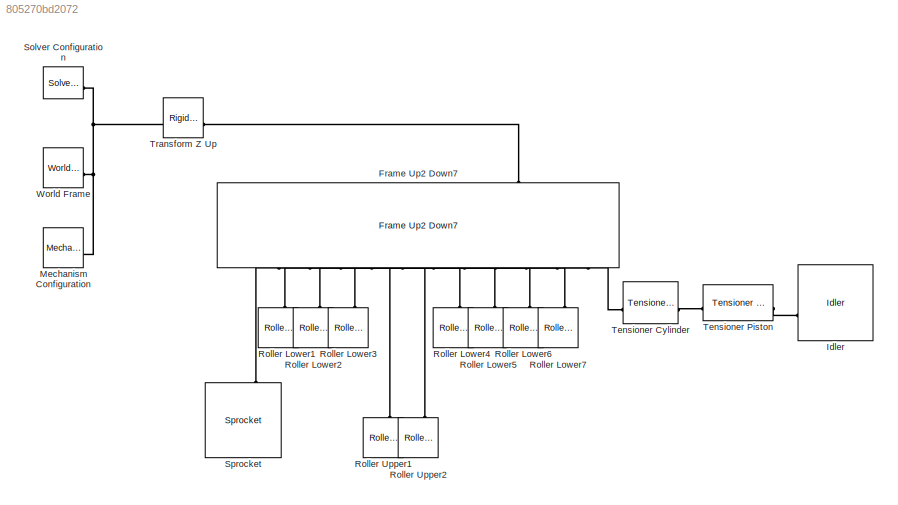
MODEL slx_805270bd2072
KIND model
CONFIG AbsTol = 1e-3
CONFIG EnableMultiTasking = on
CONFIG SolverName = VariableStepAuto
BLOCK [Reference] Frame Up2 Down7  REF=sm_trackV_lib_frame_i1u2l7/Frame
Up2 Down7
  NameLocation = left
  SourceBlock = sm_trackV_lib_frame_i1u2l7/Frame\nUp2 Down7
  SourceType = Frame Locations, Sprocket, Rollers (9), Idler (1)
BLOCK [Reference] Idler  REF=sm_trackV_lib_chain_underc_elem/Idler
  SourceBlock = sm_trackV_lib_chain_underc_elem/Idler
  SourceType = Idler
BLOCK [Reference] Mechanism Configuration  REF=sm_lib/Utilities/Mechanism
Configuration
  SourceBlock = sm_lib/Utilities/Mechanism\nConfiguration
  SourceType = Mechanism\nConfiguration
BLOCK [Reference] Roller Lower1  REF=sm_trackV_lib_chain_underc_elem/Roller Lower
  SourceBlock = sm_trackV_lib_chain_underc_elem/Roller Lower
  SourceType = Lower Roller
BLOCK [Reference] Roller Lower2  REF=sm_trackV_lib_chain_underc_elem/Roller Lower
  SourceBlock = sm_trackV_lib_chain_underc_elem/Roller Lower
  SourceType = Lower Roller
BLOCK [Reference] Roller Lower3  REF=sm_trackV_lib_chain_underc_elem/Roller Lower
  SourceBlock = sm_trackV_lib_chain_underc_elem/Roller Lower
  SourceType = Lower Roller
BLOCK [Reference] Roller Lower4  REF=sm_trackV_lib_chain_underc_elem/Roller Lower
  SourceBlock = sm_trackV_lib_chain_underc_elem/Roller Lower
  SourceType = Lower Roller
BLOCK [Reference] Roller Lower5  REF=sm_trackV_lib_chain_underc_elem/Roller Lower
  SourceBlock = sm_trackV_lib_chain_underc_elem/Roller Lower
  SourceType = Lower Roller
BLOCK [Reference] Roller Lower6  REF=sm_trackV_lib_chain_underc_elem/Roller Lower
  SourceBlock = sm_trackV_lib_chain_underc_elem/Roller Lower
  SourceType = Lower Roller
BLOCK [Reference] Roller Lower7  REF=sm_trackV_lib_chain_underc_elem/Roller Lower
  SourceBlock = sm_trackV_lib_chain_underc_elem/Roller Lower
  SourceType = Lower Roller
BLOCK [Reference] Roller Upper1  REF=sm_trackV_lib_chain_underc_elem/Roller Upper
  SourceBlock = sm_trackV_lib_chain_underc_elem/Roller Upper
  SourceType = Upper Roller
BLOCK [Reference] Roller Upper2  REF=sm_trackV_lib_chain_underc_elem/Roller Upper
  SourceBlock = sm_trackV_lib_chain_underc_elem/Roller Upper
  SourceType = Upper Roller
BLOCK [Reference] Solver Configuration  REF=nesl_utility/Solver
Configuration
  SourceBlock = nesl_utility/Solver\nConfiguration
  SourceType = Solver\nConfiguration
BLOCK [Reference] Sprocket  REF=sm_trackV_lib_chain_underc_elem/Sprocket
  NameLocation = left
  SourceBlock = sm_trackV_lib_chain_underc_elem/Sprocket
  SourceType = Sprocket
BLOCK [Reference] Tensioner Cylinder  REF=sm_trackV_lib_chain_underc_elem/Tensioner Cylinder
  SourceBlock = sm_trackV_lib_chain_underc_elem/Tensioner Cylinder
  SourceType = Tensioner Cylinder
BLOCK [Reference] Tensioner Piston  REF=sm_trackV_lib_chain_underc_elem/Tensioner Piston
  SourceBlock = sm_trackV_lib_chain_underc_elem/Tensioner Piston
  SourceType = Tensioner Piston and Bracket
BLOCK [Reference] Transform Z Up  REF=sm_lib/Frames and
Transforms/Rigid
Transform
  SourceBlock = sm_lib/Frames and\nTransforms/Rigid\nTransform
  SourceType = Rigid\nTransform
BLOCK [Reference] World Frame  REF=sm_lib/Frames and
Transforms/World Frame
  SourceBlock = sm_lib/Frames and\nTransforms/World Frame
  SourceType = World Frame
PLINE Frame Up2 Down7:LConn2 -- Transform Z Up:RConn1
PLINE Frame Up2 Down7:RConn1 -- Tensioner Cylinder:LConn1
PLINE Frame Up2 Down7:RConn10 -- Roller Lower1:LConn1
PLINE Frame Up2 Down7:RConn11 -- Sprocket:LConn1
PLINE Frame Up2 Down7:RConn2 -- Roller Lower7:LConn1
PLINE Frame Up2 Down7:RConn3 -- Roller Lower6:LConn1
PLINE Frame Up2 Down7:RConn4 -- Roller Lower5:LConn1
PLINE Frame Up2 Down7:RConn5 -- Roller Lower4:LConn1
PLINE Frame Up2 Down7:RConn6 -- Roller Upper2:LConn1
PLINE Frame Up2 Down7:RConn7 -- Roller Upper1:LConn1
PLINE Frame Up2 Down7:RConn8 -- Roller Lower3:LConn1
PLINE Frame Up2 Down7:RConn9 -- Roller Lower2:LConn1
PLINE Idler:LConn1 -- Tensioner Piston:RConn1
PNET net1: Mechanism Configuration:RConn1 -- Solver Configuration:RConn1 -- Transform Z Up:LConn1 -- World Frame:RConn1
PLINE Tensioner Cylinder:RConn1 -- Tensioner Piston:LConn1
note: PNET lines group multi-terminal physical nets as a canonical sorted terminal list (undirected conserving connections); 2-terminal nets keep the pairwise PLINE form
